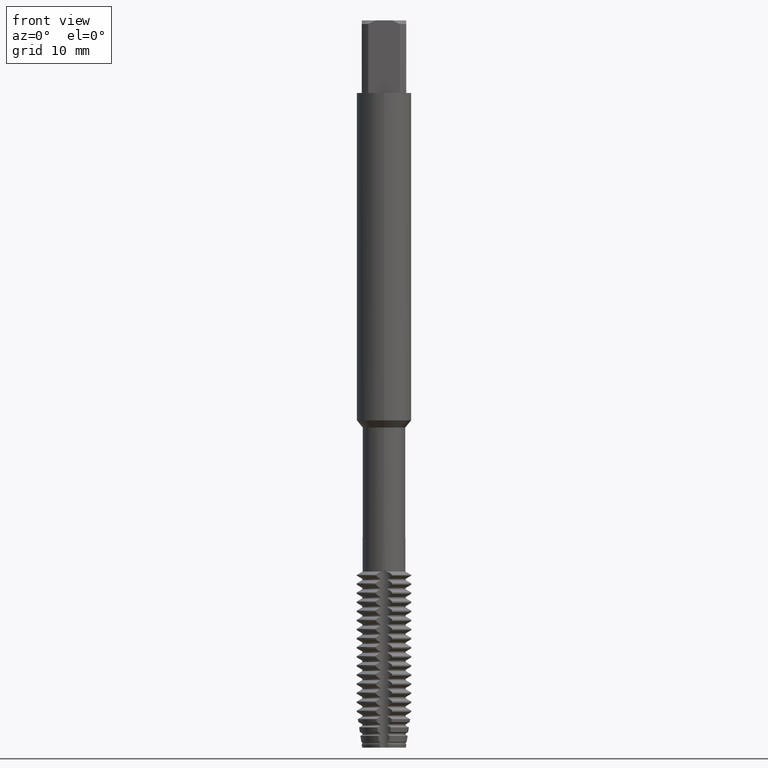
[diagram: clean part render]
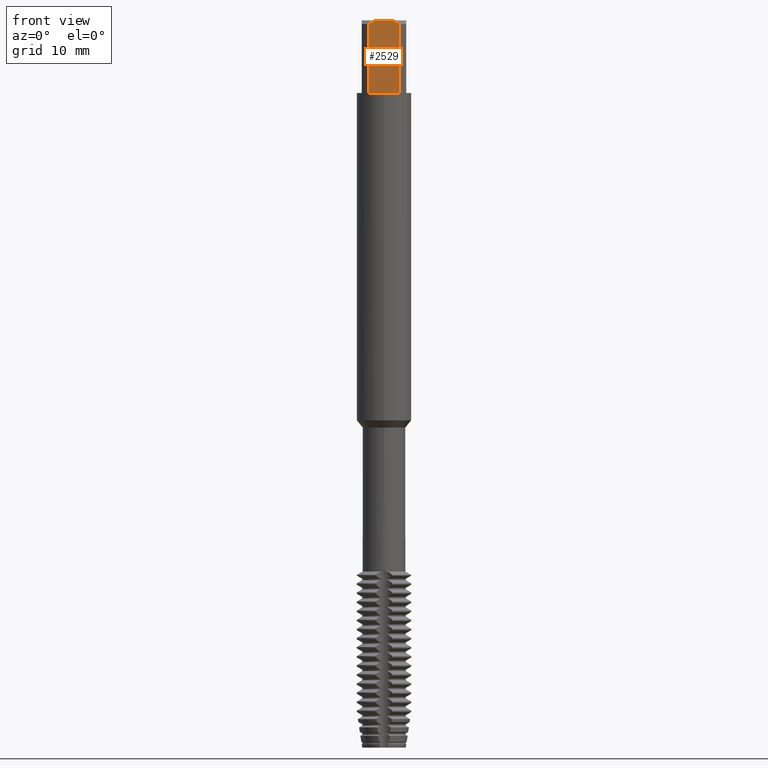
[diagram: same view with one face highlighted and labeled with its STEP entity id]
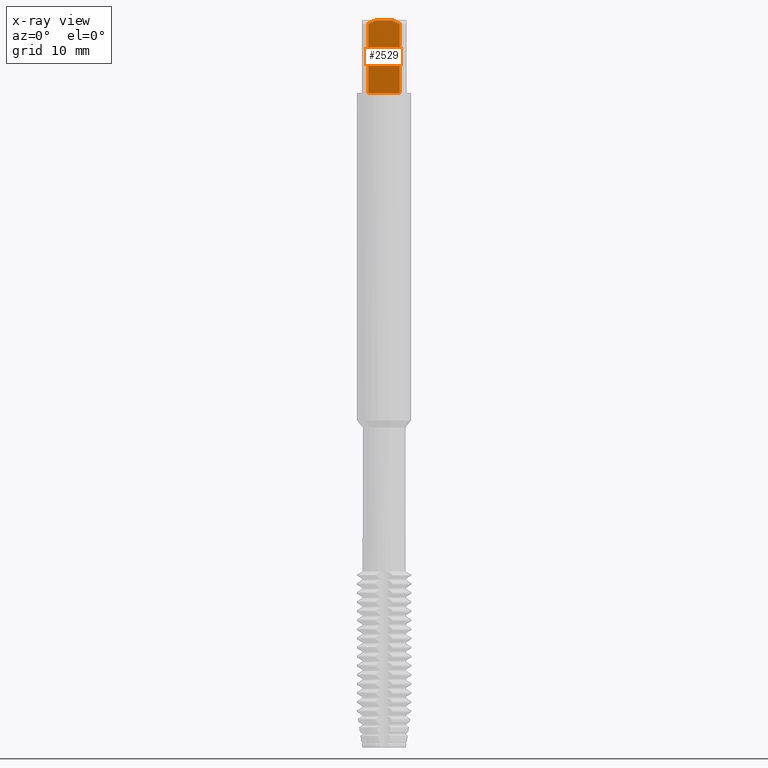
[diagram: x-ray of the same camera — body ghosted, the highlighted face saturated]
A machine part, front view. The second image highlights one B-rep face of the part: STEP entity #2529.
The next image is the same camera in x-ray: the body ghosted, the highlighted face saturated — about 0% of this face is hidden behind the body in this view.
In plain terms, the highlighted planar face has unit normal (0, -1, 0).
Its self-contained STEP definition (entity closure, byte-faithful):
#2529=ADVANCED_FACE('',(#7303),#7304,.T.);
#3463=VERTEX_POINT('',#8333);
#4085=EDGE_CURVE('',#4107,#5447,#9014,.T.);
#4107=VERTEX_POINT('',#9038);
#4333=VERTEX_POINT('',#9285);
#4345=EDGE_CURVE('',#6129,#4333,#9297,.T.);
#4403=EDGE_CURVE('',#5447,#5661,#9361,.T.);
#4763=EDGE_CURVE('',#4333,#4107,#9758,.T.);
#5351=EDGE_CURVE('',#3463,#6129,#10397,.T.);
#5447=VERTEX_POINT('',#10498);
#5661=VERTEX_POINT('',#10731);
#5711=EDGE_CURVE('',#5661,#3463,#10788,.T.);
#6129=VERTEX_POINT('',#11244);
#7303=FACE_OUTER_BOUND('',#12573,.T.);
#7304=PLANE('',#12574);
#8333=CARTESIAN_POINT('',(-1.73132896931808,-2.45,-8.0));
#9014=(B_SPLINE_CURVE(2,(#15638,#15639,#15640),.UNSPECIFIED.,.F.,.F.)B_SPLINE_CURVE_WITH_KNOTS((3,3),(0.0,0.950549192151453),.UNSPECIFIED.)RATIONAL_B_SPLINE_CURVE((1.0,1.01203284912645,1.0))BOUNDED_CURVE()REPRESENTATION_ITEM('')GEOMETRIC_REPRESENTATION_ITEM()CURVE());
#9038=CARTESIAN_POINT('',(0.87034475927646,-2.45,0.0));
#9285=CARTESIAN_POINT('',(-0.87034475927646,-2.45,0.0));
#9297=(B_SPLINE_CURVE(2,(#16184,#16185,#16186),.UNSPECIFIED.,.F.,.F.)B_SPLINE_CURVE_WITH_KNOTS((3,3),(0.0,0.950549192151453),.UNSPECIFIED.)RATIONAL_B_SPLINE_CURVE((1.0,1.01203284912645,1.0))BOUNDED_CURVE()REPRESENTATION_ITEM('')GEOMETRIC_REPRESENTATION_ITEM()CURVE());
#9361=LINE('',#16304,#16305);
#9758=LINE('',#16954,#16955);
#10397=LINE('',#17996,#17997);
#10498=CARTESIAN_POINT('',(1.73132896931808,-2.45,-0.399999999999999));
#10731=CARTESIAN_POINT('',(1.73132896931808,-2.45,-8.0));
#10788=LINE('',#18731,#18732);
#11244=CARTESIAN_POINT('',(-1.73132896931808,-2.45,-0.399999999999999));
#12573=EDGE_LOOP('',(#21614,#21615,#21616,#21617,#21618,#21619));
#12574=AXIS2_PLACEMENT_3D('',#21620,#21621,#21622);
#15638=CARTESIAN_POINT('',(0.870344759276449,-2.45,1.11022302462516E-016));
#15639=CARTESIAN_POINT('',(1.27008742822434,-2.45,-0.133813052683839));
#15640=CARTESIAN_POINT('',(1.73132896931807,-2.45,-0.399999999999998));
#16184=CARTESIAN_POINT('',(-1.73132896931807,-2.45,-0.399999999999998));
#16185=CARTESIAN_POINT('',(-1.27008742822434,-2.45,-0.133813052683839));
#16186=CARTESIAN_POINT('',(-0.870344759276449,-2.45,1.11022302462516E-016));
#16304=CARTESIAN_POINT('',(1.73132896931808,-2.45,-4.2));
#16305=VECTOR('',#23862,1.0);
#16954=CARTESIAN_POINT('',(0.0,-2.45,0.0));
#16955=VECTOR('',#24634,1.0);
#17996=CARTESIAN_POINT('',(-1.73132896931808,-2.45,-4.2));
#17997=VECTOR('',#25299,1.0);
#18731=CARTESIAN_POINT('',(0.0,-2.45,-8.0));
#18732=VECTOR('',#25715,1.0);
#21614=ORIENTED_EDGE('',*,*,#4403,.F.);
#21615=ORIENTED_EDGE('',*,*,#4085,.F.);
#21616=ORIENTED_EDGE('',*,*,#4763,.F.);
#21617=ORIENTED_EDGE('',*,*,#4345,.F.);
#21618=ORIENTED_EDGE('',*,*,#5351,.F.);
#21619=ORIENTED_EDGE('',*,*,#5711,.F.);
#21620=CARTESIAN_POINT('',(0.0,-2.45,-3.5));
#21621=DIRECTION('',(0.0,-1.0,0.0));
#21622=DIRECTION('',(0.0,0.0,-1.0));
#23862=DIRECTION('',(0.0,0.0,-1.0));
#24634=DIRECTION('',(1.0,0.0,0.0));
#25299=DIRECTION('',(-0.0,-0.0,1.0));
#25715=DIRECTION('',(-1.0,0.0,0.0));